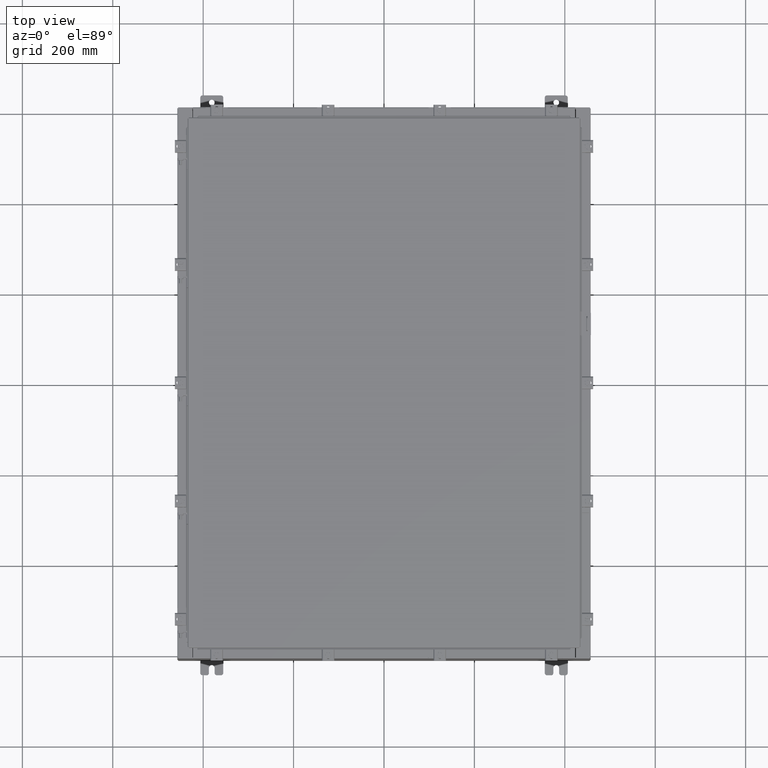
[diagram: clean part render]
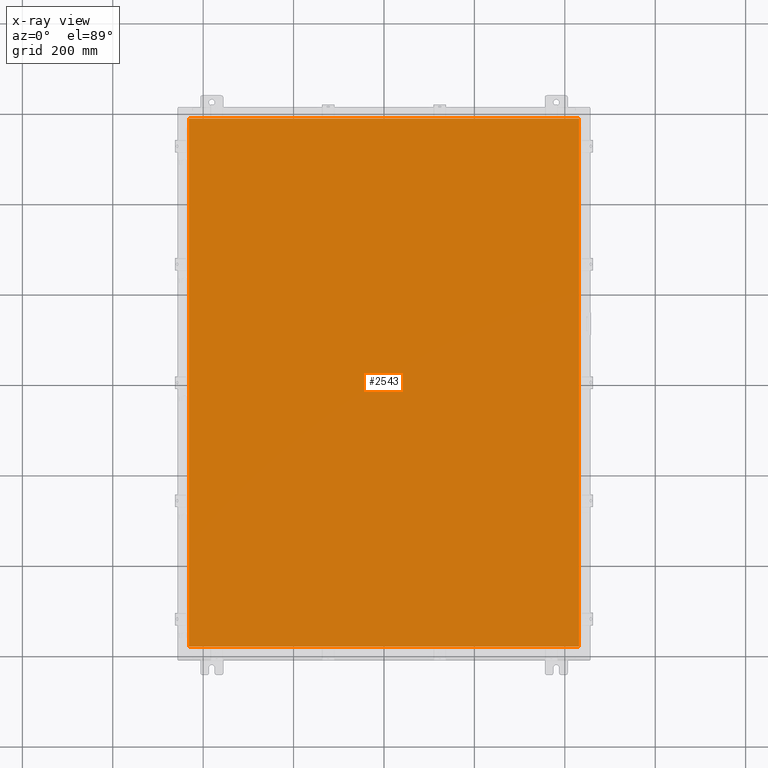
[diagram: x-ray — body ghosted, one internal face saturated and labeled with its STEP entity id]
A machine part, top view, then the same camera in x-ray: the body is ghosted and one INTERNAL B-rep face — a face not visible from any outside direction — is saturated and labeled: STEP entity #2543.
In plain terms, the highlighted planar face has unit normal (0, 0, -1).
Its self-contained STEP definition (entity closure, byte-faithful):
#949 = CARTESIAN_POINT ( 'NONE',  ( 16.99029999999999800, 23.00630000000000000, -0.07469999999999804600 ) ) ;
#2189 = CARTESIAN_POINT ( 'NONE',  ( -16.99029999999999800, -23.00630000000000000, -0.07469999999999797600 ) ) ;
#2333 = CARTESIAN_POINT ( 'NONE',  ( 16.99030000000000100, -23.00630000000000000, -0.07470000000000000300 ) ) ;
#2543 = ADVANCED_FACE ( 'NONE', ( #19637 ), #15263, .T. ) ;
#3188 = VERTEX_POINT ( 'NONE', #15787 ) ;
#4744 = VERTEX_POINT ( 'NONE', #26674 ) ;
#4924 = CARTESIAN_POINT ( 'NONE',  ( -16.99029999999999800, 23.00629999999999600, -0.07470000000000000300 ) ) ;
#8411 = ORIENTED_EDGE ( 'NONE', *, *, #21213, .F. ) ;
#8495 = DIRECTION ( 'NONE',  ( 1.000000000000000000, -0.0000000000000000000, -0.0000000000000000000 ) ) ;
#8769 = CARTESIAN_POINT ( 'NONE',  ( 0.0000000000000000000, 0.0000000000000000000, -0.07470000000000000300 ) ) ;
#9140 = LINE ( 'NONE', #949, #25292 ) ;
#10141 = EDGE_CURVE ( 'NONE', #4744, #22996, #25276, .T. ) ;
#10234 = DIRECTION ( 'NONE',  ( -1.000000000000000000, 0.0000000000000000000, -0.0000000000000000000 ) ) ;
#10528 = EDGE_LOOP ( 'NONE', ( #21571, #21686, #8411, #11791 ) ) ;
#10851 = VECTOR ( 'NONE', #15789, 39.37007874015748100 ) ;
#11791 = ORIENTED_EDGE ( 'NONE', *, *, #22523, .F. ) ;
#13394 = CARTESIAN_POINT ( 'NONE',  ( -16.99029999999999800, 23.00629999999999600, -0.07470000000000019700 ) ) ;
#14159 = VECTOR ( 'NONE', #15626, 39.37007874015748100 ) ;
#14194 = AXIS2_PLACEMENT_3D ( 'NONE', #8769, #21869, #10234 ) ;
#15263 = PLANE ( 'NONE',  #14194 ) ;
#15626 = DIRECTION ( 'NONE',  ( 0.0000000000000000000, -1.000000000000000000, 0.0000000000000000000 ) ) ;
#15787 = CARTESIAN_POINT ( 'NONE',  ( 16.99030000000000100, 23.00629999999999600, -0.07470000000000000300 ) ) ;
#15789 = DIRECTION ( 'NONE',  ( 0.0000000000000000000, 1.000000000000000000, 0.0000000000000000000 ) ) ;
#17163 = LINE ( 'NONE', #24197, #10851 ) ;
#19637 = FACE_OUTER_BOUND ( 'NONE', #10528, .T. ) ;
#19779 = LINE ( 'NONE', #13394, #14159 ) ;
#21213 = EDGE_CURVE ( 'NONE', #26459, #4744, #19779, .T. ) ;
#21571 = ORIENTED_EDGE ( 'NONE', *, *, #23678, .F. ) ;
#21686 = ORIENTED_EDGE ( 'NONE', *, *, #10141, .F. ) ;
#21869 = DIRECTION ( 'NONE',  ( 0.0000000000000000000, 0.0000000000000000000, -1.000000000000000000 ) ) ;
#22059 = DIRECTION ( 'NONE',  ( -1.000000000000000000, -0.0000000000000000000, -0.0000000000000000000 ) ) ;
#22523 = EDGE_CURVE ( 'NONE', #3188, #26459, #9140, .T. ) ;
#22996 = VERTEX_POINT ( 'NONE', #2333 ) ;
#23678 = EDGE_CURVE ( 'NONE', #22996, #3188, #17163, .T. ) ;
#24197 = CARTESIAN_POINT ( 'NONE',  ( 16.99030000000000100, -23.00629999999999600, -0.07470000000000129300 ) ) ;
#24629 = VECTOR ( 'NONE', #8495, 39.37007874015748100 ) ;
#25276 = LINE ( 'NONE', #2189, #24629 ) ;
#25292 = VECTOR ( 'NONE', #22059, 39.37007874015748100 ) ;
#26459 = VERTEX_POINT ( 'NONE', #4924 ) ;
#26674 = CARTESIAN_POINT ( 'NONE',  ( -16.99029999999999800, -23.00629999999999600, -0.07470000000000000300 ) ) ;